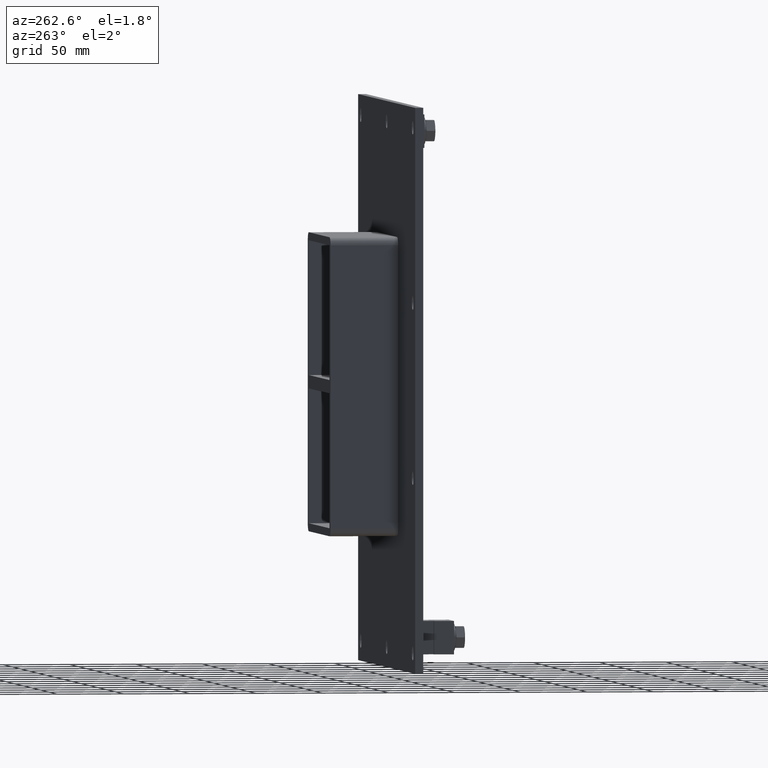
[diagram: clean part render]
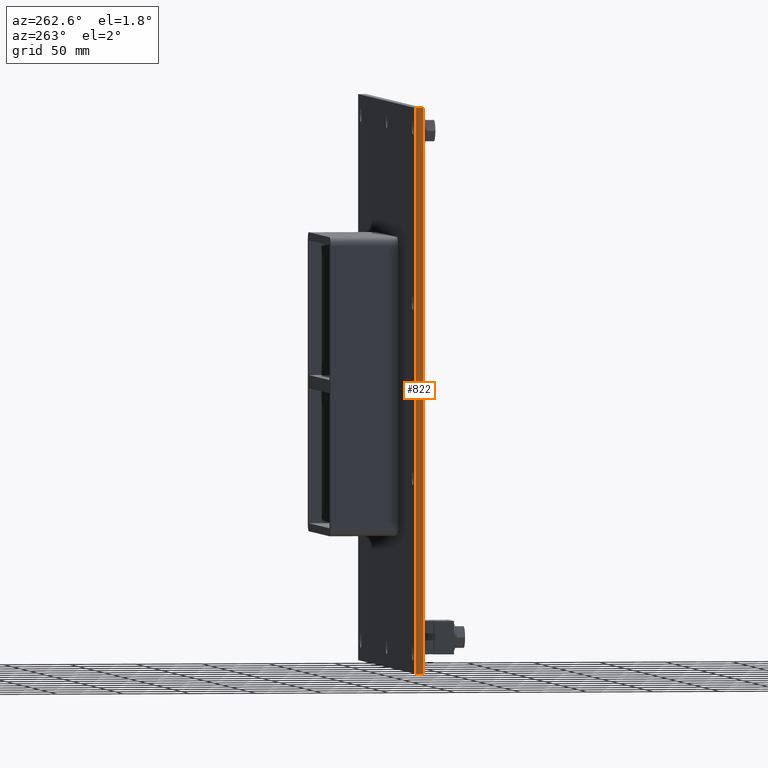
[diagram: same view with one face highlighted and labeled with its STEP entity id]
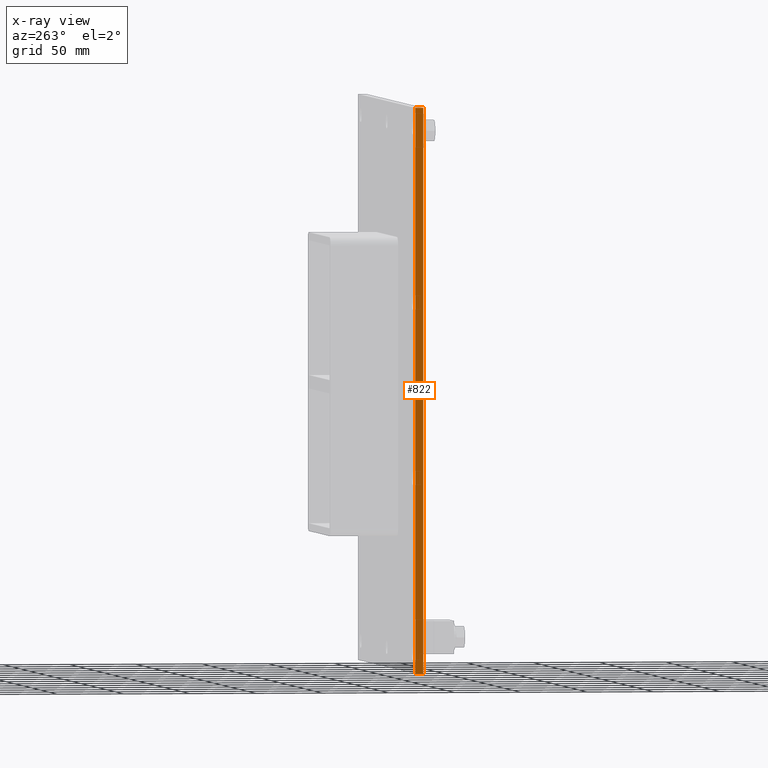
[diagram: x-ray of the same camera — body ghosted, the highlighted face saturated]
A machine part, auxiliary view. The second image highlights one B-rep face of the part: STEP entity #822.
The next image is the same camera in x-ray: the body ghosted, the highlighted face saturated — about 0% of this face is hidden behind the body in this view.
In plain terms, the highlighted planar face has unit normal (-1, 0, 0).
Its self-contained STEP definition (entity closure, byte-faithful):
#526=CARTESIAN_POINT('',(-166.25,6.000000000000001,211.99999999999994));
#527=VERTEX_POINT('',#526);
#544=CARTESIAN_POINT('',(-166.25,6.000000000000001,-212.00000000000003));
#545=VERTEX_POINT('',#544);
#552=CARTESIAN_POINT('',(-166.25,6.000000000000001,-212.00000000000003));
#553=DIRECTION('',(0.0,0.0,1.0));
#554=VECTOR('',#553,424.0);
#555=LINE('',#552,#554);
#556=EDGE_CURVE('',#545,#527,#555,.T.);
#666=CARTESIAN_POINT('',(-166.25,0.0,211.99999999999994));
#667=VERTEX_POINT('',#666);
#676=CARTESIAN_POINT('',(-166.25,0.0,-212.00000000000003));
#677=VERTEX_POINT('',#676);
#678=CARTESIAN_POINT('',(-166.25,0.0,-212.00000000000003));
#679=DIRECTION('',(0.0,0.0,1.0));
#680=VECTOR('',#679,424.0);
#681=LINE('',#678,#680);
#682=EDGE_CURVE('',#677,#667,#681,.T.);
#801=CARTESIAN_POINT('',(-166.25,0.0,-212.00000000000003));
#802=DIRECTION('',(-1.0,0.0,0.0));
#803=DIRECTION('',(0.0,0.0,1.0));
#804=AXIS2_PLACEMENT_3D('',#801,#802,#803);
#805=PLANE('',#804);
#806=ORIENTED_EDGE('',*,*,#682,.T.);
#807=CARTESIAN_POINT('',(-166.25,0.0,211.99999999999994));
#808=DIRECTION('',(0.0,1.0,0.0));
#809=VECTOR('',#808,6.000000000000001);
#810=LINE('',#807,#809);
#811=EDGE_CURVE('',#667,#527,#810,.T.);
#812=ORIENTED_EDGE('',*,*,#811,.T.);
#813=ORIENTED_EDGE('',*,*,#556,.F.);
#814=CARTESIAN_POINT('',(-166.25,0.0,-212.00000000000003));
#815=DIRECTION('',(0.0,1.0,0.0));
#816=VECTOR('',#815,6.000000000000001);
#817=LINE('',#814,#816);
#818=EDGE_CURVE('',#677,#545,#817,.T.);
#819=ORIENTED_EDGE('',*,*,#818,.F.);
#820=EDGE_LOOP('',(#806,#812,#813,#819));
#821=FACE_OUTER_BOUND('',#820,.T.);
#822=ADVANCED_FACE('',(#821),#805,.T.);